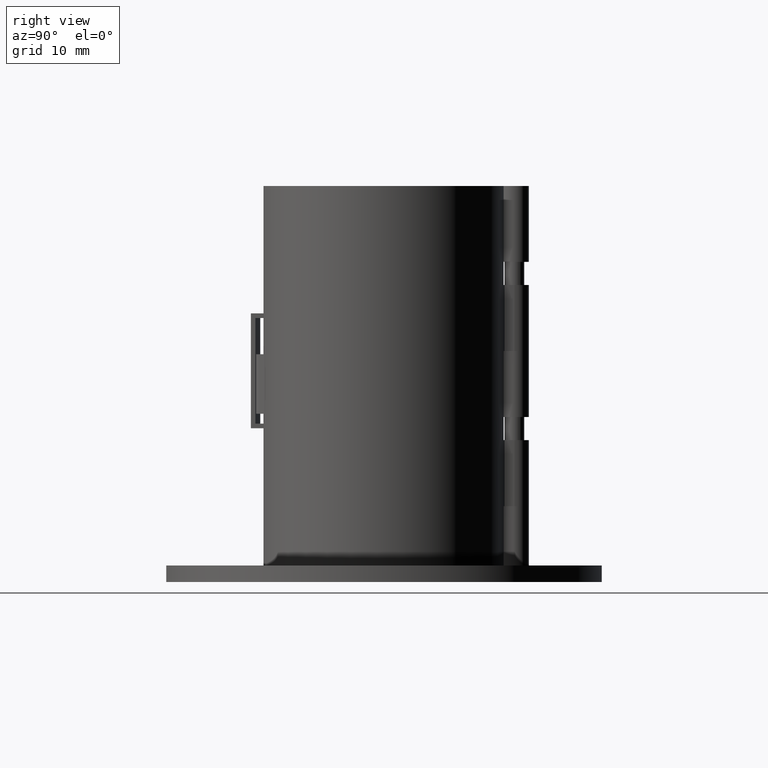
[diagram: clean part render]
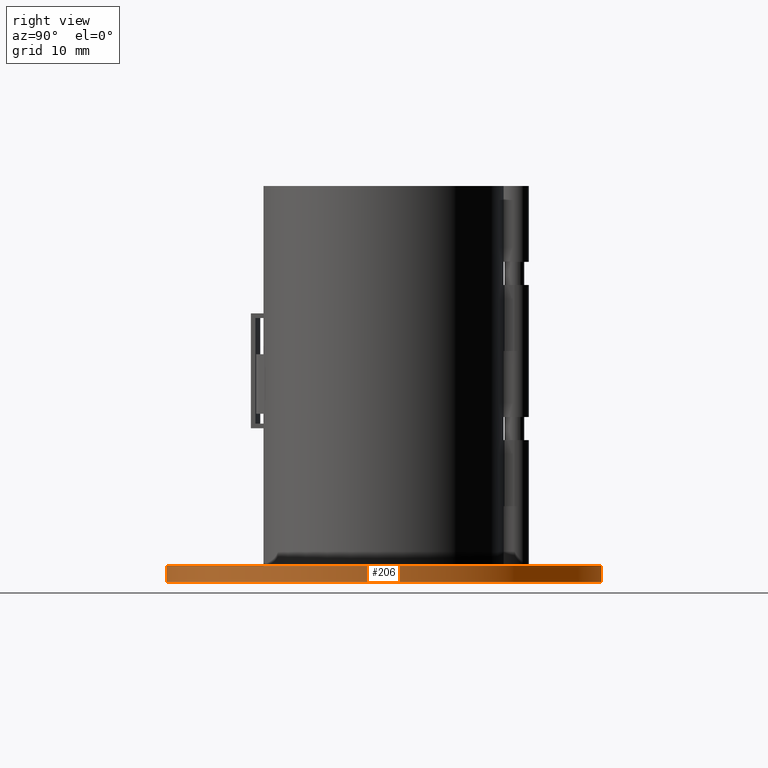
[diagram: same view with one face highlighted and labeled with its STEP entity id]
A machine part, right view. The second image highlights one B-rep face of the part: STEP entity #206.
In plain terms, the highlighted cylindrical surface (partial cylindrical patch) has radius 33 mm, axis along (0, 0, 1).
Its self-contained STEP definition (entity closure, byte-faithful):
#148=CARTESIAN_POINT('',(0.5,32.996211903792833,2.5));
#149=VERTEX_POINT('',#148);
#156=CARTESIAN_POINT('',(0.5,32.996211903792833,0.0));
#157=VERTEX_POINT('',#156);
#158=CARTESIAN_POINT('',(0.5,32.996211903792833,0.0));
#159=DIRECTION('',(0.0,0.0,1.0));
#160=VECTOR('',#159,2.5);
#161=LINE('',#158,#160);
#162=EDGE_CURVE('',#157,#149,#161,.T.);
#174=CARTESIAN_POINT('',(0.0,0.0,0.0));
#175=DIRECTION('',(0.0,0.0,1.0));
#176=DIRECTION('',(-0.015151515151515,0.999885209205843,0.0));
#177=AXIS2_PLACEMENT_3D('',#174,#175,#176);
#178=CYLINDRICAL_SURFACE('',#177,33.0);
#179=CARTESIAN_POINT('',(0.5,-32.996211903792833,2.5));
#180=VERTEX_POINT('',#179);
#181=CARTESIAN_POINT('',(0.0,0.0,2.5));
#182=DIRECTION('',(0.0,0.0,-1.0));
#183=DIRECTION('',(-0.015151515151515,0.999885209205843,0.0));
#184=AXIS2_PLACEMENT_3D('',#181,#182,#183);
#185=CIRCLE('',#184,32.999999999999993);
#186=EDGE_CURVE('',#149,#180,#185,.T.);
#187=ORIENTED_EDGE('',*,*,#186,.T.);
#188=CARTESIAN_POINT('',(0.5,-32.996211903792833,0.0));
#189=VERTEX_POINT('',#188);
#190=CARTESIAN_POINT('',(0.5,-32.996211903792833,0.0));
#191=DIRECTION('',(0.0,0.0,1.0));
#192=VECTOR('',#191,2.5);
#193=LINE('',#190,#192);
#194=EDGE_CURVE('',#189,#180,#193,.T.);
#195=ORIENTED_EDGE('',*,*,#194,.F.);
#196=CARTESIAN_POINT('',(0.0,0.0,0.0));
#197=DIRECTION('',(0.0,0.0,-1.0));
#198=DIRECTION('',(-0.015151515151515,0.999885209205843,0.0));
#199=AXIS2_PLACEMENT_3D('',#196,#197,#198);
#200=CIRCLE('',#199,32.999999999999993);
#201=EDGE_CURVE('',#157,#189,#200,.T.);
#202=ORIENTED_EDGE('',*,*,#201,.F.);
#203=ORIENTED_EDGE('',*,*,#162,.T.);
#204=EDGE_LOOP('',(#187,#195,#202,#203));
#205=FACE_OUTER_BOUND('',#204,.T.);
#206=ADVANCED_FACE('',(#205),#178,.T.);